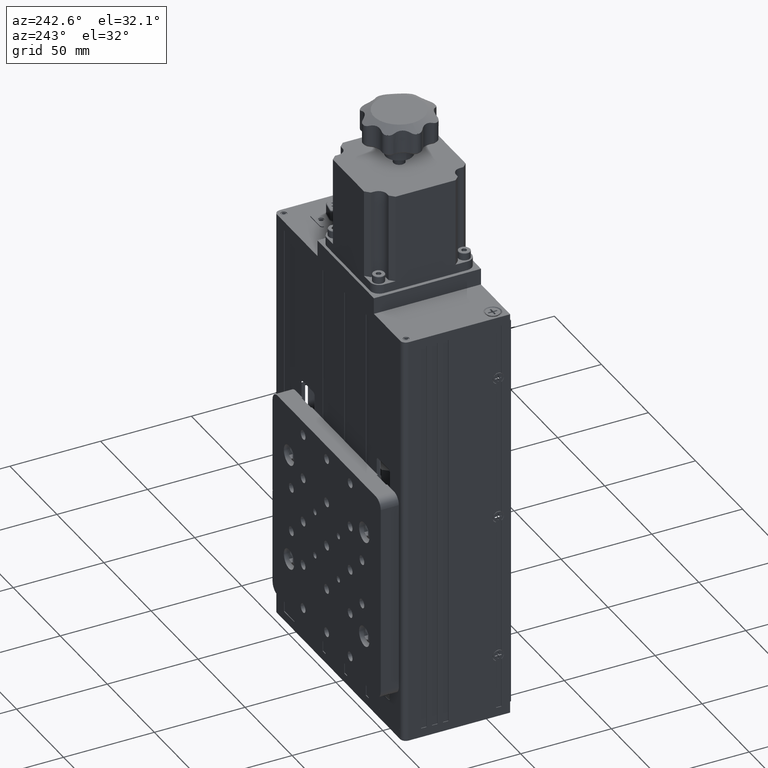
[diagram: clean part render]
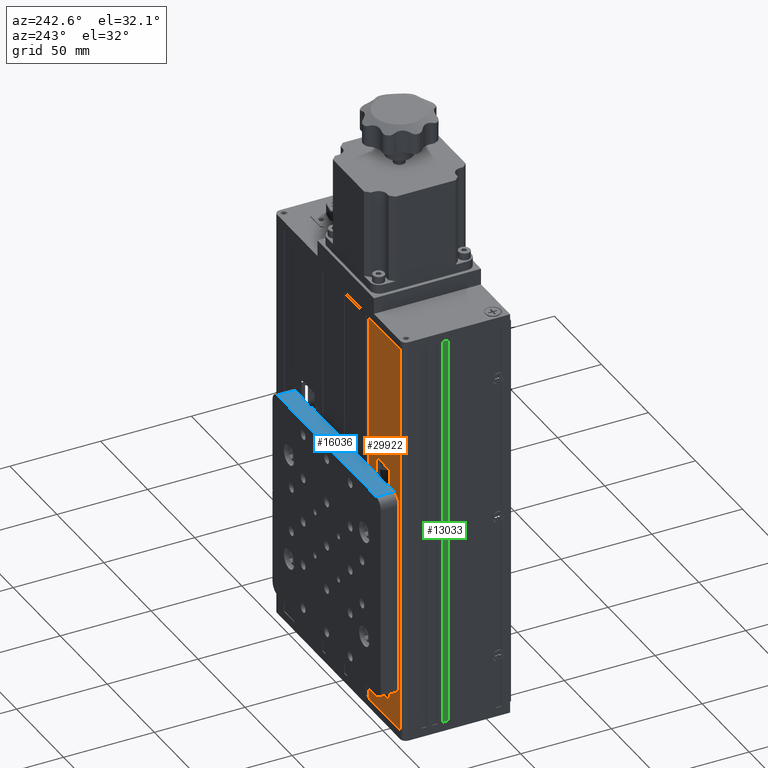
[diagram: same view with three faces highlighted in distinct colors, each labeled with its STEP entity id]
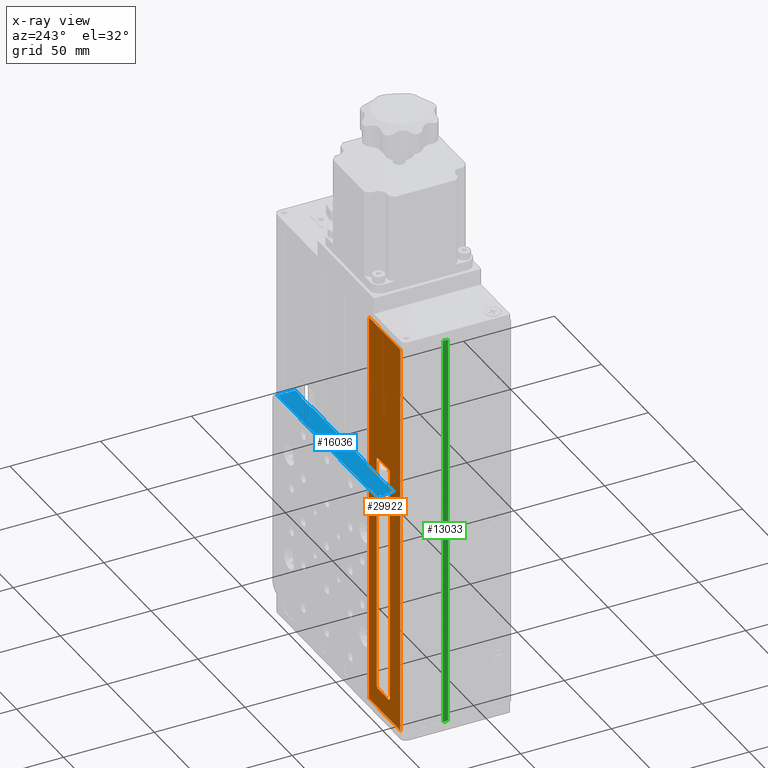
[diagram: x-ray of the same camera — body ghosted, the three highlighted faces saturated]
A machine part, auxiliary view with three faces highlighted in distinct colors.
The next image is the same camera in x-ray (body ghosted, the three faces saturated) — at least one of them is partly hidden behind the body in this view.
Their STEP definitions:

[orange] entity #29922 — the highlighted planar face has unit normal (-0, -1, 0).
#489 = DIRECTION ( 'NONE',  ( -1.864180451795976100E-015, -1.000000000000000000, 0.0000000000000000000 ) ) ;
#563 = VECTOR ( 'NONE', #32007, 1000.000000000000000 ) ;
#607 = VECTOR ( 'NONE', #24568, 1000.000000000000000 ) ;
#694 = DIRECTION ( 'NONE',  ( -1.000000000000000000, 1.864180451795975700E-015, 0.0000000000000000000 ) ) ;
#854 = VECTOR ( 'NONE', #27428, 1000.000000000000000 ) ;
#1182 = CARTESIAN_POINT ( 'NONE',  ( -43.61080835603997500, 50.08234937935211000, -97.50000000000000000 ) ) ;
#1508 = ORIENTED_EDGE ( 'NONE', *, *, #18906, .T. ) ;
#2709 = EDGE_CURVE ( 'NONE', #32299, #3215, #28026, .T. ) ;
#3007 = ORIENTED_EDGE ( 'NONE', *, *, #36572, .F. ) ;
#3057 = VECTOR ( 'NONE', #11875, 1000.000000000000000 ) ;
#3215 = VERTEX_POINT ( 'NONE', #10437 ) ;
#3575 = CARTESIAN_POINT ( 'NONE',  ( -35.11080835603999600, 50.08234937935204600, -110.0000000000000000 ) ) ;
#4029 = LINE ( 'NONE', #32583, #3057 ) ;
#4182 = CIRCLE ( 'NONE', #34194, 1.500000000000001300 ) ;
#4630 = EDGE_CURVE ( 'NONE', #21039, #34315, #29075, .T. ) ;
#4684 = ORIENTED_EDGE ( 'NONE', *, *, #26302, .T. ) ;
#4809 = VERTEX_POINT ( 'NONE', #34888 ) ;
#6524 = LINE ( 'NONE', #29635, #29177 ) ;
#6641 = ORIENTED_EDGE ( 'NONE', *, *, #28062, .F. ) ;
#6653 = EDGE_LOOP ( 'NONE', ( #29071, #11507, #6641, #1508 ) ) ;
#6939 = EDGE_CURVE ( 'NONE', #27143, #14454, #33052, .T. ) ;
#7065 = DIRECTION ( 'NONE',  ( -1.864180451795976100E-015, -1.000000000000000000, 0.0000000000000000000 ) ) ;
#7198 = FACE_BOUND ( 'NONE', #13756, .T. ) ;
#7200 = DIRECTION ( 'NONE',  ( -0.0000000000000000000, -0.0000000000000000000, -1.000000000000000000 ) ) ;
#7381 = ORIENTED_EDGE ( 'NONE', *, *, #9956, .F. ) ;
#7472 = CARTESIAN_POINT ( 'NONE',  ( -57.61080835603997500, 50.08234937935211000, -97.50000000000000000 ) ) ;
#7806 = ORIENTED_EDGE ( 'NONE', *, *, #14685, .T. ) ;
#9956 = EDGE_CURVE ( 'NONE', #26717, #13716, #4029, .T. ) ;
#10437 = CARTESIAN_POINT ( 'NONE',  ( -68.61080835603992500, 50.08234937935211000, -110.0000000000000000 ) ) ;
#10846 = CIRCLE ( 'NONE', #20866, 1.500000000000001300 ) ;
#11412 = ORIENTED_EDGE ( 'NONE', *, *, #13216, .T. ) ;
#11507 = ORIENTED_EDGE ( 'NONE', *, *, #35858, .F. ) ;
#11778 = CARTESIAN_POINT ( 'NONE',  ( -57.61080835603997500, 50.08234937935211000, 32.50000000000000000 ) ) ;
#11875 = DIRECTION ( 'NONE',  ( 0.0000000000000000000, 0.0000000000000000000, 1.000000000000000000 ) ) ;
#11898 = DIRECTION ( 'NONE',  ( -1.000000000000000000, 1.864180451795975700E-015, 0.0000000000000000000 ) ) ;
#12345 = ORIENTED_EDGE ( 'NONE', *, *, #6939, .F. ) ;
#12654 = CARTESIAN_POINT ( 'NONE',  ( -56.11080835603997500, 50.08234937935211000, -99.00000000000000000 ) ) ;
#13216 = EDGE_CURVE ( 'NONE', #26717, #15320, #4182, .T. ) ;
#13321 = VECTOR ( 'NONE', #7200, 1000.000000000000000 ) ;
#13716 = VERTEX_POINT ( 'NONE', #11778 ) ;
#13756 = EDGE_LOOP ( 'NONE', ( #12345, #4684, #7381, #11412, #3007, #28584, #24594, #7806 ) ) ;
#13832 = DIRECTION ( 'NONE',  ( -1.864180451795976100E-015, -1.000000000000000000, 0.0000000000000000000 ) ) ;
#13834 = EDGE_CURVE ( 'NONE', #4809, #34315, #35046, .T. ) ;
#14448 = LINE ( 'NONE', #27920, #21399 ) ;
#14454 = VERTEX_POINT ( 'NONE', #25844 ) ;
#14685 = EDGE_CURVE ( 'NONE', #21039, #14454, #10846, .T. ) ;
#15164 = CARTESIAN_POINT ( 'NONE',  ( -56.11080835603997500, 50.08234937935208800, -97.50000000000000000 ) ) ;
#15320 = VERTEX_POINT ( 'NONE', #12654 ) ;
#15992 = CARTESIAN_POINT ( 'NONE',  ( -43.61080835603997500, 50.08234937935211000, -99.00000000000000000 ) ) ;
#16967 = CARTESIAN_POINT ( 'NONE',  ( -45.11080835603997500, 50.08234937935206700, -97.50000000000000000 ) ) ;
#17906 = CARTESIAN_POINT ( 'NONE',  ( -35.11080835603999600, 50.08234937935204600, -110.0000000000000000 ) ) ;
#18136 = DIRECTION ( 'NONE',  ( 1.000000000000000000, 0.0000000000000000000, 0.0000000000000000000 ) ) ;
#18191 = CARTESIAN_POINT ( 'NONE',  ( -45.11080835603997500, 50.08234937935206700, 32.50000000000000000 ) ) ;
#18906 = EDGE_CURVE ( 'NONE', #26176, #32299, #14448, .T. ) ;
#19236 = CIRCLE ( 'NONE', #25121, 1.500000000000001300 ) ;
#19944 = DIRECTION ( 'NONE',  ( 1.000000000000000000, 0.0000000000000000000, 0.0000000000000000000 ) ) ;
#20866 = AXIS2_PLACEMENT_3D ( 'NONE', #18191, #489, #21172 ) ;
#21039 = VERTEX_POINT ( 'NONE', #23208 ) ;
#21172 = DIRECTION ( 'NONE',  ( 1.000000000000000000, 0.0000000000000000000, 0.0000000000000000000 ) ) ;
#21399 = VECTOR ( 'NONE', #33878, 1000.000000000000000 ) ;
#22561 = AXIS2_PLACEMENT_3D ( 'NONE', #16967, #37651, #19944 ) ;
#22932 = FACE_OUTER_BOUND ( 'NONE', #6653, .T. ) ;
#23208 = CARTESIAN_POINT ( 'NONE',  ( -43.61080835603997500, 50.08234937935211000, 32.50000000000000000 ) ) ;
#23755 = CARTESIAN_POINT ( 'NONE',  ( -56.11080835603997500, 50.08234937935211000, 34.00000000000000000 ) ) ;
#24198 = LINE ( 'NONE', #29033, #563 ) ;
#24428 = CARTESIAN_POINT ( 'NONE',  ( -57.61080835603997500, 50.08234937935211000, -99.00000000000000000 ) ) ;
#24568 = DIRECTION ( 'NONE',  ( 1.000000000000000000, 0.0000000000000000000, 9.912705577010328500E-016 ) ) ;
#24594 = ORIENTED_EDGE ( 'NONE', *, *, #4630, .F. ) ;
#24790 = CARTESIAN_POINT ( 'NONE',  ( -56.11080835603997500, 50.08234937935208800, 32.50000000000000000 ) ) ;
#25121 = AXIS2_PLACEMENT_3D ( 'NONE', #24790, #7065, #27781 ) ;
#25844 = CARTESIAN_POINT ( 'NONE',  ( -45.11080835603997500, 50.08234937935211000, 34.00000000000001400 ) ) ;
#26176 = VERTEX_POINT ( 'NONE', #27275 ) ;
#26302 = EDGE_CURVE ( 'NONE', #27143, #13716, #19236, .T. ) ;
#26717 = VERTEX_POINT ( 'NONE', #7472 ) ;
#27094 = VECTOR ( 'NONE', #694, 1000.000000000000000 ) ;
#27143 = VERTEX_POINT ( 'NONE', #23755 ) ;
#27275 = CARTESIAN_POINT ( 'NONE',  ( -35.11080835603999600, 50.08234937935204600, 110.0000000000000000 ) ) ;
#27428 = DIRECTION ( 'NONE',  ( -1.000000000000000000, -0.0000000000000000000, -0.0000000000000000000 ) ) ;
#27781 = DIRECTION ( 'NONE',  ( 1.000000000000000000, 0.0000000000000000000, 0.0000000000000000000 ) ) ;
#27920 = CARTESIAN_POINT ( 'NONE',  ( -35.11080835603999600, 50.08234937935204600, 110.0000000000000000 ) ) ;
#28026 = LINE ( 'NONE', #3575, #27094 ) ;
#28062 = EDGE_CURVE ( 'NONE', #26176, #32000, #6524, .T. ) ;
#28584 = ORIENTED_EDGE ( 'NONE', *, *, #13834, .T. ) ;
#29033 = CARTESIAN_POINT ( 'NONE',  ( -68.61080835603992500, 50.08234937935211000, 110.0000000000000000 ) ) ;
#29071 = ORIENTED_EDGE ( 'NONE', *, *, #2709, .T. ) ;
#29075 = LINE ( 'NONE', #15992, #13321 ) ;
#29177 = VECTOR ( 'NONE', #11898, 1000.000000000000000 ) ;
#29635 = CARTESIAN_POINT ( 'NONE',  ( -35.11080835603999600, 50.08234937935204600, 110.0000000000000000 ) ) ;
#29922 = ADVANCED_FACE ( 'NONE', ( #7198, #22932 ), #37362, .F. ) ;
#31584 = CARTESIAN_POINT ( 'NONE',  ( -35.11080835603999600, 50.08234937935204600, 110.0000000000000000 ) ) ;
#32000 = VERTEX_POINT ( 'NONE', #36580 ) ;
#32007 = DIRECTION ( 'NONE',  ( -0.0000000000000000000, -0.0000000000000000000, -1.000000000000000000 ) ) ;
#32299 = VERTEX_POINT ( 'NONE', #17906 ) ;
#32347 = LINE ( 'NONE', #24428, #854 ) ;
#32583 = CARTESIAN_POINT ( 'NONE',  ( -57.61080835603997500, 50.08234937935211000, -99.00000000000000000 ) ) ;
#33052 = LINE ( 'NONE', #36364, #607 ) ;
#33639 = AXIS2_PLACEMENT_3D ( 'NONE', #31584, #13832, #34525 ) ;
#33878 = DIRECTION ( 'NONE',  ( -0.0000000000000000000, -0.0000000000000000000, -1.000000000000000000 ) ) ;
#34194 = AXIS2_PLACEMENT_3D ( 'NONE', #15164, #35899, #18136 ) ;
#34315 = VERTEX_POINT ( 'NONE', #1182 ) ;
#34525 = DIRECTION ( 'NONE',  ( 1.000000000000000000, -1.864180451795976100E-015, 0.0000000000000000000 ) ) ;
#34888 = CARTESIAN_POINT ( 'NONE',  ( -45.11080835603997500, 50.08234937935211000, -99.00000000000000000 ) ) ;
#35046 = CIRCLE ( 'NONE', #22561, 1.500000000000001300 ) ;
#35858 = EDGE_CURVE ( 'NONE', #32000, #3215, #24198, .T. ) ;
#35899 = DIRECTION ( 'NONE',  ( -1.864180451795976100E-015, -1.000000000000000000, 0.0000000000000000000 ) ) ;
#36364 = CARTESIAN_POINT ( 'NONE',  ( -57.61080835603997500, 50.08234937935211000, 34.00000000000000000 ) ) ;
#36572 = EDGE_CURVE ( 'NONE', #4809, #15320, #32347, .T. ) ;
#36580 = CARTESIAN_POINT ( 'NONE',  ( -68.61080835603992500, 50.08234937935211000, 110.0000000000000000 ) ) ;
#37362 = PLANE ( 'NONE',  #33639 ) ;
#37651 = DIRECTION ( 'NONE',  ( -1.864180451795976100E-015, -1.000000000000000000, 0.0000000000000000000 ) ) ;

[blue] entity #16036 — the highlighted planar face has unit normal (0, -0, -1).
#443 = VECTOR ( 'NONE', #7533, 1000.000000000000000 ) ;
#1275 = VERTEX_POINT ( 'NONE', #13971 ) ;
#1344 = VERTEX_POINT ( 'NONE', #29229 ) ;
#1374 = LINE ( 'NONE', #25238, #443 ) ;
#1430 = EDGE_CURVE ( 'NONE', #25514, #32180, #32327, .T. ) ;
#1481 = EDGE_CURVE ( 'NONE', #7445, #22170, #23517, .T. ) ;
#1494 = LINE ( 'NONE', #36077, #36244 ) ;
#2831 = DIRECTION ( 'NONE',  ( -1.581389297847712600E-017, 1.000000000000000000, -6.467343205884651100E-019 ) ) ;
#3370 = CARTESIAN_POINT ( 'NONE',  ( -63.11080835603995400, 50.58234937935199600, 25.00000000000002800 ) ) ;
#3481 = VECTOR ( 'NONE', #31064, 1000.000000000000000 ) ;
#3732 = CARTESIAN_POINT ( 'NONE',  ( 24.38919164396005700, 50.58234937935199600, 25.00000000000002800 ) ) ;
#5852 = DIRECTION ( 'NONE',  ( -1.581389297847712600E-017, 1.000000000000000000, -6.467343205884651100E-019 ) ) ;
#6214 = LINE ( 'NONE', #36049, #36740 ) ;
#6769 = EDGE_CURVE ( 'NONE', #26221, #22196, #31215, .T. ) ;
#7278 = LINE ( 'NONE', #18028, #37806 ) ;
#7384 = DIRECTION ( 'NONE',  ( 1.581389297847712600E-017, -1.000000000000000000, 6.467343205884651100E-019 ) ) ;
#7445 = VERTEX_POINT ( 'NONE', #15664 ) ;
#7484 = DIRECTION ( 'NONE',  ( 1.000000000000000000, 1.242341102270276100E-016, 2.775557561562891400E-017 ) ) ;
#7533 = DIRECTION ( 'NONE',  ( 1.000000000000000000, 1.581389297847712300E-017, 2.775557561562891400E-017 ) ) ;
#7797 = VECTOR ( 'NONE', #12405, 1000.000000000000000 ) ;
#7967 = LINE ( 'NONE', #14580, #29718 ) ;
#8162 = VERTEX_POINT ( 'NONE', #24933 ) ;
#8433 = CARTESIAN_POINT ( 'NONE',  ( 41.88919164396007500, 50.58234937935199600, 25.00000000000002800 ) ) ;
#8623 = LINE ( 'NONE', #8433, #38204 ) ;
#8629 = ORIENTED_EDGE ( 'NONE', *, *, #30716, .T. ) ;
#8742 = VECTOR ( 'NONE', #15224, 1000.000000000000000 ) ;
#8826 = CARTESIAN_POINT ( 'NONE',  ( 24.38919164396005700, 51.08234937935199600, 25.00000000000002800 ) ) ;
#9262 = FACE_OUTER_BOUND ( 'NONE', #20100, .T. ) ;
#9469 = CARTESIAN_POINT ( 'NONE',  ( -63.11080835603995400, 50.58234937935199600, 25.00000000000002800 ) ) ;
#9567 = ORIENTED_EDGE ( 'NONE', *, *, #6769, .T. ) ;
#10088 = ORIENTED_EDGE ( 'NONE', *, *, #1430, .T. ) ;
#10579 = LINE ( 'NONE', #25188, #17468 ) ;
#11033 = VERTEX_POINT ( 'NONE', #16973 ) ;
#11345 = LINE ( 'NONE', #28094, #3481 ) ;
#11391 = DIRECTION ( 'NONE',  ( -1.581389297847712600E-017, 1.000000000000000000, -6.467343205884651100E-019 ) ) ;
#11477 = CARTESIAN_POINT ( 'NONE',  ( 34.38919164396005400, 50.58234937935199600, 25.00000000000002800 ) ) ;
#12026 = CARTESIAN_POINT ( 'NONE',  ( 34.38919164396005400, 51.08234937935199600, 25.00000000000002800 ) ) ;
#12405 = DIRECTION ( 'NONE',  ( 1.581389297847712600E-017, -1.000000000000000000, 6.467343205884651100E-019 ) ) ;
#13313 = ORIENTED_EDGE ( 'NONE', *, *, #1481, .T. ) ;
#13746 = LINE ( 'NONE', #22127, #28566 ) ;
#13971 = CARTESIAN_POINT ( 'NONE',  ( 41.88919164396007500, 50.58234937935199600, 25.00000000000002800 ) ) ;
#14580 = CARTESIAN_POINT ( 'NONE',  ( -55.61080835603994600, 51.08234937935198200, 25.00000000000002800 ) ) ;
#14874 = CARTESIAN_POINT ( 'NONE',  ( 34.38919164396005400, 51.08234937935199600, 25.00000000000002800 ) ) ;
#15102 = ORIENTED_EDGE ( 'NONE', *, *, #24178, .T. ) ;
#15224 = DIRECTION ( 'NONE',  ( 1.581389297847712600E-017, -1.000000000000000000, 6.467343205884651100E-019 ) ) ;
#15664 = CARTESIAN_POINT ( 'NONE',  ( -63.11080835603991100, 60.58234937935198900, 25.00000000000002800 ) ) ;
#15864 = EDGE_CURVE ( 'NONE', #8162, #26221, #1374, .T. ) ;
#16036 = ADVANCED_FACE ( 'NONE', ( #9262 ), #20439, .F. ) ;
#16973 = CARTESIAN_POINT ( 'NONE',  ( -55.61080835603994600, 51.08234937935198200, 25.00000000000002800 ) ) ;
#17197 = EDGE_CURVE ( 'NONE', #11033, #33286, #7278, .T. ) ;
#17468 = VECTOR ( 'NONE', #7484, 1000.000000000000000 ) ;
#17481 = VERTEX_POINT ( 'NONE', #31374 ) ;
#17584 = CARTESIAN_POINT ( 'NONE',  ( -55.61080835603994600, 50.58234937935199600, 25.00000000000002800 ) ) ;
#18020 = EDGE_CURVE ( 'NONE', #1344, #7445, #11345, .T. ) ;
#18028 = CARTESIAN_POINT ( 'NONE',  ( -45.61080835603995400, 51.08234937935198900, 25.00000000000002800 ) ) ;
#18265 = DIRECTION ( 'NONE',  ( 1.000000000000000000, 1.581389297847712300E-017, 2.775557561562891400E-017 ) ) ;
#19937 = ORIENTED_EDGE ( 'NONE', *, *, #17197, .T. ) ;
#20100 = EDGE_LOOP ( 'NONE', ( #30974, #13313, #27721, #23909, #19937, #22701, #26925, #9567, #15102, #10088, #8629, #24726 ) ) ;
#20157 = AXIS2_PLACEMENT_3D ( 'NONE', #17584, #38285, #20567 ) ;
#20439 = PLANE ( 'NONE',  #20157 ) ;
#20567 = DIRECTION ( 'NONE',  ( -1.581389297847712600E-017, 1.000000000000000000, -6.467343205884651100E-019 ) ) ;
#22127 = CARTESIAN_POINT ( 'NONE',  ( -45.61080835603995400, 51.08234937935198900, 25.00000000000002800 ) ) ;
#22170 = VERTEX_POINT ( 'NONE', #3370 ) ;
#22196 = VERTEX_POINT ( 'NONE', #24077 ) ;
#22701 = ORIENTED_EDGE ( 'NONE', *, *, #34391, .T. ) ;
#22820 = EDGE_CURVE ( 'NONE', #22170, #17481, #1494, .T. ) ;
#23517 = LINE ( 'NONE', #9469, #7797 ) ;
#23909 = ORIENTED_EDGE ( 'NONE', *, *, #38229, .T. ) ;
#24077 = CARTESIAN_POINT ( 'NONE',  ( 24.38919164396005700, 51.08234937935199600, 25.00000000000002800 ) ) ;
#24178 = EDGE_CURVE ( 'NONE', #22196, #25514, #10579, .T. ) ;
#24726 = ORIENTED_EDGE ( 'NONE', *, *, #34582, .T. ) ;
#24933 = CARTESIAN_POINT ( 'NONE',  ( -45.61080835603995400, 50.58234937935199600, 25.00000000000002800 ) ) ;
#25188 = CARTESIAN_POINT ( 'NONE',  ( 34.38919164396005400, 51.08234937935199600, 25.00000000000002800 ) ) ;
#25238 = CARTESIAN_POINT ( 'NONE',  ( 24.38919164396005700, 50.58234937935199600, 25.00000000000002800 ) ) ;
#25514 = VERTEX_POINT ( 'NONE', #14874 ) ;
#26221 = VERTEX_POINT ( 'NONE', #3732 ) ;
#26925 = ORIENTED_EDGE ( 'NONE', *, *, #15864, .T. ) ;
#27721 = ORIENTED_EDGE ( 'NONE', *, *, #22820, .T. ) ;
#28094 = CARTESIAN_POINT ( 'NONE',  ( 46.88919164396006800, 60.58234937935199600, 25.00000000000002800 ) ) ;
#28566 = VECTOR ( 'NONE', #7384, 1000.000000000000000 ) ;
#29229 = CARTESIAN_POINT ( 'NONE',  ( 41.88919164396007500, 60.58234937935199600, 25.00000000000002800 ) ) ;
#29718 = VECTOR ( 'NONE', #5852, 1000.000000000000000 ) ;
#30112 = DIRECTION ( 'NONE',  ( 1.000000000000000000, 1.581389297847712300E-017, 2.775557561562891400E-017 ) ) ;
#30716 = EDGE_CURVE ( 'NONE', #32180, #1275, #6214, .T. ) ;
#30974 = ORIENTED_EDGE ( 'NONE', *, *, #18020, .T. ) ;
#31064 = DIRECTION ( 'NONE',  ( -1.000000000000000000, -1.581389297847712300E-017, -2.775557561562891400E-017 ) ) ;
#31215 = LINE ( 'NONE', #8826, #38104 ) ;
#31374 = CARTESIAN_POINT ( 'NONE',  ( -55.61080835603994600, 50.58234937935199600, 25.00000000000002800 ) ) ;
#31956 = CARTESIAN_POINT ( 'NONE',  ( -45.61080835603995400, 51.08234937935198900, 25.00000000000002800 ) ) ;
#32180 = VERTEX_POINT ( 'NONE', #11477 ) ;
#32327 = LINE ( 'NONE', #12026, #8742 ) ;
#33286 = VERTEX_POINT ( 'NONE', #31956 ) ;
#34391 = EDGE_CURVE ( 'NONE', #33286, #8162, #13746, .T. ) ;
#34582 = EDGE_CURVE ( 'NONE', #1275, #1344, #8623, .T. ) ;
#35811 = DIRECTION ( 'NONE',  ( 1.000000000000000000, 1.459181536767377000E-016, 2.775557561562891400E-017 ) ) ;
#36049 = CARTESIAN_POINT ( 'NONE',  ( 46.88919164396006800, 50.58234937935199600, 25.00000000000002800 ) ) ;
#36077 = CARTESIAN_POINT ( 'NONE',  ( -55.61080835603994600, 50.58234937935199600, 25.00000000000002800 ) ) ;
#36244 = VECTOR ( 'NONE', #30112, 1000.000000000000000 ) ;
#36740 = VECTOR ( 'NONE', #18265, 1000.000000000000000 ) ;
#37806 = VECTOR ( 'NONE', #35811, 1000.000000000000000 ) ;
#38104 = VECTOR ( 'NONE', #2831, 1000.000000000000000 ) ;
#38204 = VECTOR ( 'NONE', #11391, 1000.000000000000000 ) ;
#38229 = EDGE_CURVE ( 'NONE', #17481, #11033, #7967, .T. ) ;
#38285 = DIRECTION ( 'NONE',  ( 2.775557561562891400E-017, -6.467343205884646300E-019, -1.000000000000000000 ) ) ;

[green] entity #13033 — the highlighted planar face has unit normal (-1, 0, 0).
#454 = ORIENTED_EDGE ( 'NONE', *, *, #31085, .T. ) ;
#716 = VECTOR ( 'NONE', #13193, 1000.000000000000000 ) ;
#2988 = CARTESIAN_POINT ( 'NONE',  ( -71.31080835603991400, 28.08234937935210600, 110.0000000000000000 ) ) ;
#3772 = CARTESIAN_POINT ( 'NONE',  ( -71.31080835603991400, 25.08234937935211000, -110.0000000000000000 ) ) ;
#4847 = VERTEX_POINT ( 'NONE', #35157 ) ;
#6014 = DIRECTION ( 'NONE',  ( -0.0000000000000000000, -0.0000000000000000000, -1.000000000000000000 ) ) ;
#6305 = CARTESIAN_POINT ( 'NONE',  ( -71.31080835603991400, 28.08234937935210600, 110.0000000000000000 ) ) ;
#7137 = AXIS2_PLACEMENT_3D ( 'NONE', #25787, #8091, #28800 ) ;
#7418 = CARTESIAN_POINT ( 'NONE',  ( -71.31080835603991400, 28.08234937935210600, -110.0000000000000000 ) ) ;
#8091 = DIRECTION ( 'NONE',  ( -1.000000000000000000, 0.0000000000000000000, 0.0000000000000000000 ) ) ;
#8754 = VECTOR ( 'NONE', #17581, 1000.000000000000000 ) ;
#9132 = VECTOR ( 'NONE', #6014, 1000.000000000000000 ) ;
#10937 = PLANE ( 'NONE',  #7137 ) ;
#11238 = ORIENTED_EDGE ( 'NONE', *, *, #24133, .F. ) ;
#11698 = EDGE_CURVE ( 'NONE', #31269, #35604, #24355, .T. ) ;
#13033 = ADVANCED_FACE ( 'NONE', ( #24581 ), #10937, .T. ) ;
#13193 = DIRECTION ( 'NONE',  ( 0.0000000000000000000, 1.000000000000000000, 0.0000000000000000000 ) ) ;
#14004 = EDGE_CURVE ( 'NONE', #19276, #35604, #16944, .T. ) ;
#14599 = CARTESIAN_POINT ( 'NONE',  ( -71.31080835603991400, 25.08234937935211000, 110.0000000000000000 ) ) ;
#16040 = ORIENTED_EDGE ( 'NONE', *, *, #11698, .F. ) ;
#16944 = LINE ( 'NONE', #2988, #9132 ) ;
#17581 = DIRECTION ( 'NONE',  ( 0.0000000000000000000, 1.000000000000000000, 0.0000000000000000000 ) ) ;
#18401 = VECTOR ( 'NONE', #28068, 1000.000000000000000 ) ;
#19115 = CARTESIAN_POINT ( 'NONE',  ( -71.31080835603991400, 25.08234937935211000, -110.0000000000000000 ) ) ;
#19276 = VERTEX_POINT ( 'NONE', #6305 ) ;
#21125 = EDGE_LOOP ( 'NONE', ( #16040, #11238, #454, #34696 ) ) ;
#24133 = EDGE_CURVE ( 'NONE', #4847, #31269, #35103, .T. ) ;
#24355 = LINE ( 'NONE', #19115, #716 ) ;
#24581 = FACE_OUTER_BOUND ( 'NONE', #21125, .T. ) ;
#25787 = CARTESIAN_POINT ( 'NONE',  ( -71.31080835603991400, 25.08234937935211000, 110.0000000000000000 ) ) ;
#28068 = DIRECTION ( 'NONE',  ( -0.0000000000000000000, -0.0000000000000000000, -1.000000000000000000 ) ) ;
#28800 = DIRECTION ( 'NONE',  ( 0.0000000000000000000, 0.0000000000000000000, 1.000000000000000000 ) ) ;
#31045 = CARTESIAN_POINT ( 'NONE',  ( -71.31080835603991400, 25.08234937935211000, 110.0000000000000000 ) ) ;
#31085 = EDGE_CURVE ( 'NONE', #4847, #19276, #32337, .T. ) ;
#31269 = VERTEX_POINT ( 'NONE', #3772 ) ;
#32337 = LINE ( 'NONE', #14599, #8754 ) ;
#34696 = ORIENTED_EDGE ( 'NONE', *, *, #14004, .T. ) ;
#35103 = LINE ( 'NONE', #31045, #18401 ) ;
#35157 = CARTESIAN_POINT ( 'NONE',  ( -71.31080835603991400, 25.08234937935211000, 110.0000000000000000 ) ) ;
#35604 = VERTEX_POINT ( 'NONE', #7418 ) ;